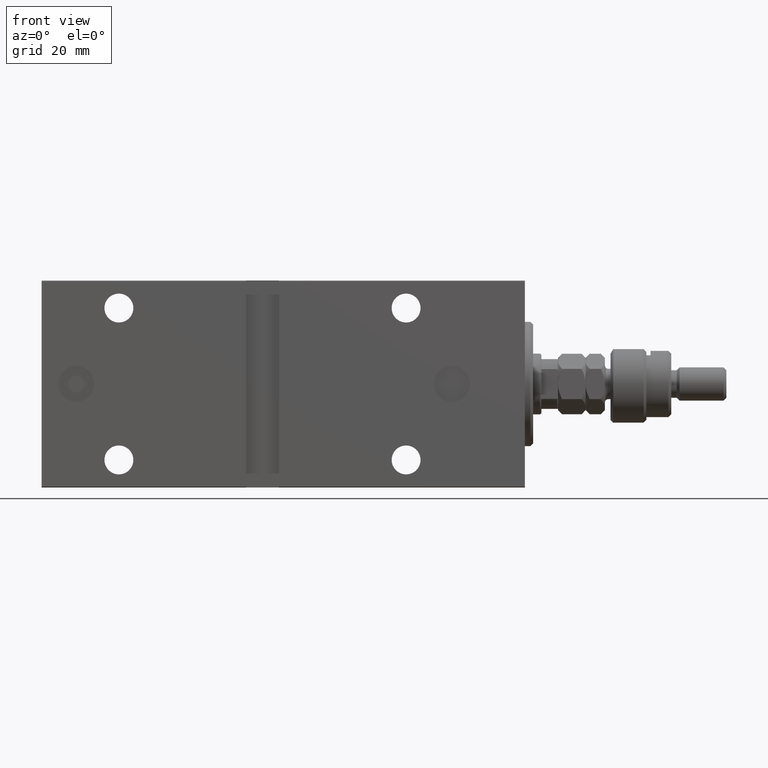
[diagram: clean part render]
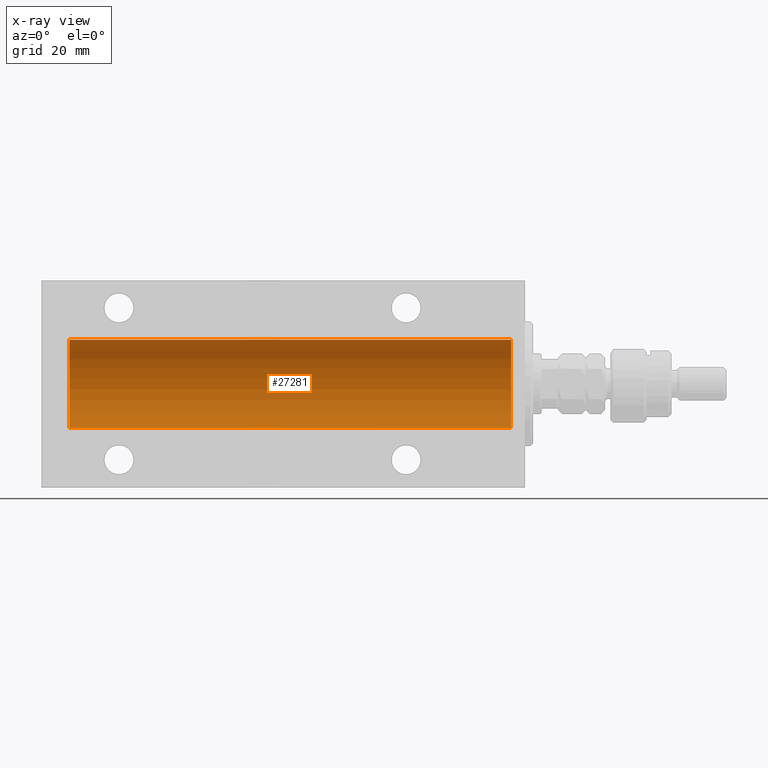
[diagram: x-ray — body ghosted, one internal face saturated and labeled with its STEP entity id]
A machine part, front view, then the same camera in x-ray: the body is ghosted and one INTERNAL B-rep face — a face not visible from any outside direction — is saturated and labeled: STEP entity #27281.
In plain terms, the highlighted cylindrical surface (partial cylindrical patch) has radius 16 mm, axis along (1, 0, -0).
Its self-contained STEP definition (entity closure, byte-faithful):
#1483 = CYLINDRICAL_SURFACE ( 'NONE', #3714, 16.00000000000000000 ) ;
#3307 = DIRECTION ( 'NONE',  ( -1.000000000000000000, -0.000000000000000000, -0.000000000000000000 ) ) ;
#3714 = AXIS2_PLACEMENT_3D ( 'NONE', #7699, #22017, #11171 ) ;
#4488 = FACE_OUTER_BOUND ( 'NONE', #24371, .T. ) ;
#6917 = CARTESIAN_POINT ( 'NONE',  ( 5.000000000000004441, 0.000000000000000000, 16.00000000000000000 ) ) ;
#7699 = CARTESIAN_POINT ( 'NONE',  ( 165.0000000000000000, 0.000000000000000000, 0.000000000000000000 ) ) ;
#7931 = DIRECTION ( 'NONE',  ( -1.000000000000000000, -0.000000000000000000, -0.000000000000000000 ) ) ;
#10092 = DIRECTION ( 'NONE',  ( 0.000000000000000000, 0.000000000000000000, 1.000000000000000000 ) ) ;
#10445 = CARTESIAN_POINT ( 'NONE',  ( 165.0000000000000000, 1.959434878635765131E-15, -16.00000000000000000 ) ) ;
#10943 = VECTOR ( 'NONE', #3307, 1000.000000000000000 ) ;
#11171 = DIRECTION ( 'NONE',  ( 0.000000000000000000, 0.000000000000000000, 1.000000000000000000 ) ) ;
#13310 = VECTOR ( 'NONE', #7931, 1000.000000000000000 ) ;
#14629 = DIRECTION ( 'NONE',  ( 0.000000000000000000, 0.000000000000000000, 1.000000000000000000 ) ) ;
#15477 = ORIENTED_EDGE ( 'NONE', *, *, #21483, .T. ) ;
#16328 = ORIENTED_EDGE ( 'NONE', *, *, #40862, .F. ) ;
#16988 = CARTESIAN_POINT ( 'NONE',  ( 165.0000000000000000, 1.959434878635765131E-15, -16.00000000000000000 ) ) ;
#21483 = EDGE_CURVE ( 'NONE', #35685, #27439, #41613, .T. ) ;
#22017 = DIRECTION ( 'NONE',  ( -1.000000000000000000, -0.000000000000000000, -0.000000000000000000 ) ) ;
#22180 = AXIS2_PLACEMENT_3D ( 'NONE', #39117, #39346, #14629 ) ;
#23546 = CARTESIAN_POINT ( 'NONE',  ( 165.0000000000000000, 0.000000000000000000, 16.00000000000000000 ) ) ;
#24371 = EDGE_LOOP ( 'NONE', ( #31942, #15477, #36666, #16328 ) ) ;
#24751 = EDGE_CURVE ( 'NONE', #27439, #25745, #27231, .T. ) ;
#25745 = VERTEX_POINT ( 'NONE', #6917 ) ;
#27231 = CIRCLE ( 'NONE', #43453, 16.00000000000000000 ) ;
#27281 = ADVANCED_FACE ( 'NONE', ( #4488 ), #1483, .F. ) ;
#27439 = VERTEX_POINT ( 'NONE', #45054 ) ;
#31942 = ORIENTED_EDGE ( 'NONE', *, *, #40717, .F. ) ;
#32790 = VERTEX_POINT ( 'NONE', #23546 ) ;
#32882 = LINE ( 'NONE', #43491, #13310 ) ;
#35685 = VERTEX_POINT ( 'NONE', #16988 ) ;
#36666 = ORIENTED_EDGE ( 'NONE', *, *, #24751, .T. ) ;
#38499 = CARTESIAN_POINT ( 'NONE',  ( 5.000000000000004441, 0.000000000000000000, 0.000000000000000000 ) ) ;
#39117 = CARTESIAN_POINT ( 'NONE',  ( 165.0000000000000000, 0.000000000000000000, 0.000000000000000000 ) ) ;
#39346 = DIRECTION ( 'NONE',  ( -1.000000000000000000, 0.000000000000000000, 0.000000000000000000 ) ) ;
#40717 = EDGE_CURVE ( 'NONE', #35685, #32790, #42804, .T. ) ;
#40862 = EDGE_CURVE ( 'NONE', #32790, #25745, #32882, .T. ) ;
#41262 = DIRECTION ( 'NONE',  ( -1.000000000000000000, 0.000000000000000000, 0.000000000000000000 ) ) ;
#41613 = LINE ( 'NONE', #10445, #10943 ) ;
#42804 = CIRCLE ( 'NONE', #22180, 16.00000000000000000 ) ;
#43453 = AXIS2_PLACEMENT_3D ( 'NONE', #38499, #41262, #10092 ) ;
#43491 = CARTESIAN_POINT ( 'NONE',  ( 165.0000000000000000, 0.000000000000000000, 16.00000000000000000 ) ) ;
#45054 = CARTESIAN_POINT ( 'NONE',  ( 5.000000000000004441, 1.959434878635765131E-15, -16.00000000000000000 ) ) ;